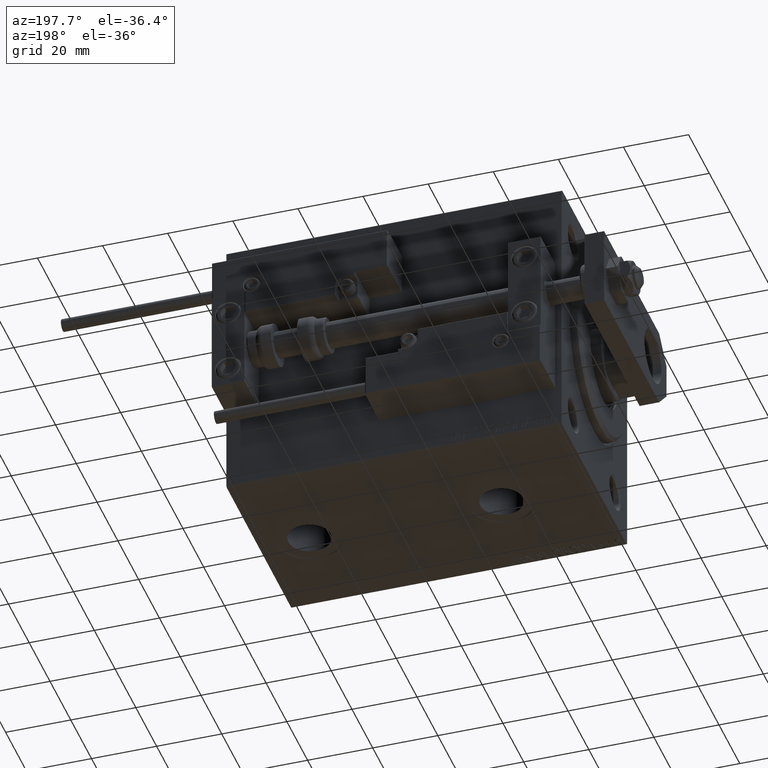
[diagram: clean part render]
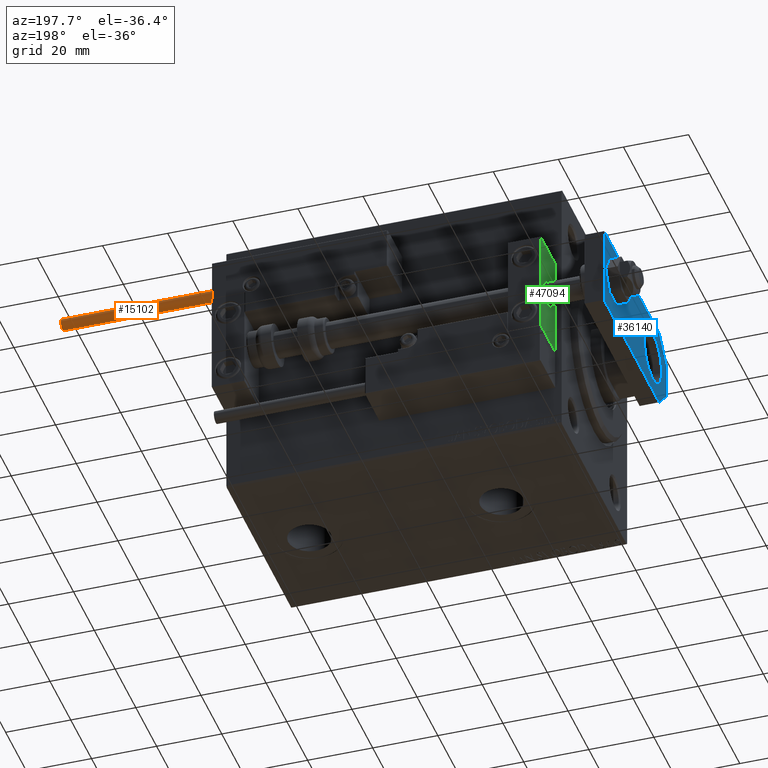
[diagram: same view with three faces highlighted in distinct colors, each labeled with its STEP entity id]
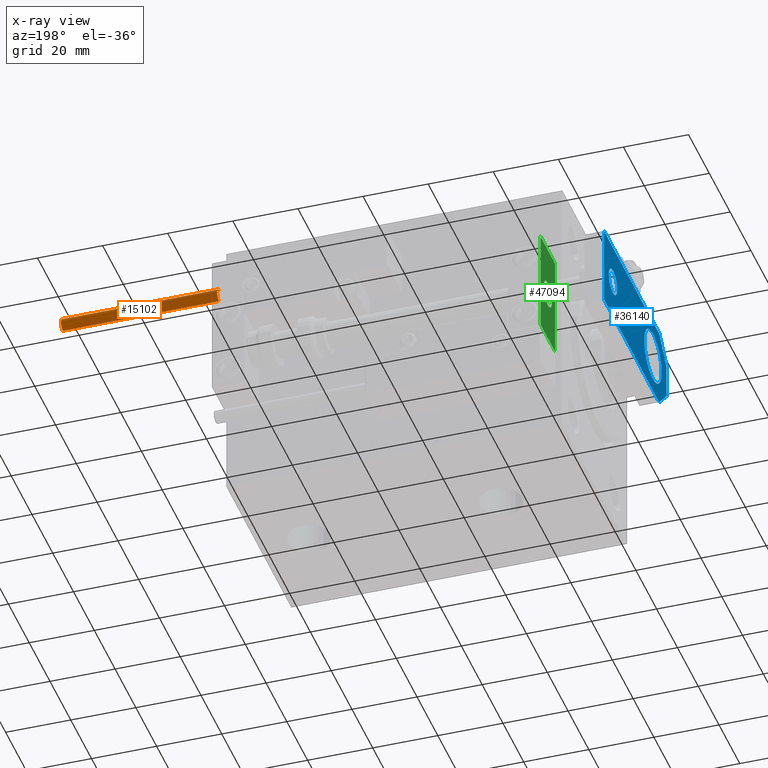
[diagram: x-ray of the same camera — body ghosted, the three highlighted faces saturated]
A machine part, auxiliary view with three faces highlighted in distinct colors.
The next image is the same camera in x-ray (body ghosted, the three faces saturated) — at least one of them is partly hidden behind the body in this view.
Their STEP definitions:

[orange] entity #15102 — the highlighted cylindrical surface (edge-blend (fillet) strip) has radius 1.9 mm, axis along (-1, -0, -0).
#32 = ORIENTED_EDGE ( 'NONE', *, *, #10376, .F. ) ;
#482 = DIRECTION ( 'NONE',  ( 1.000000000000000000, 0.000000000000000000, 0.000000000000000000 ) ) ;
#1290 = VECTOR ( 'NONE', #27601, 1000.000000000000000 ) ;
#2026 = AXIS2_PLACEMENT_3D ( 'NONE', #36532, #12356, #44274 ) ;
#2965 = CARTESIAN_POINT ( 'NONE',  ( -1.899999999999999467, 0.000000000000000000, 0.000000000000000000 ) ) ;
#3309 = EDGE_CURVE ( 'NONE', #45047, #3544, #24915, .T. ) ;
#3544 = VERTEX_POINT ( 'NONE', #28497 ) ;
#5155 = DIRECTION ( 'NONE',  ( -0.000000000000000000, -0.000000000000000000, -1.000000000000000000 ) ) ;
#5808 = EDGE_CURVE ( 'NONE', #45047, #7470, #15118, .T. ) ;
#6351 = ORIENTED_EDGE ( 'NONE', *, *, #35622, .T. ) ;
#7470 = VERTEX_POINT ( 'NONE', #46035 ) ;
#8840 = ORIENTED_EDGE ( 'NONE', *, *, #3309, .F. ) ;
#10376 = EDGE_CURVE ( 'NONE', #3544, #25398, #13018, .T. ) ;
#11137 = CARTESIAN_POINT ( 'NONE',  ( 1.899999999999999467, 2.326828918379970872E-16, 48.00000000000000000 ) ) ;
#12356 = DIRECTION ( 'NONE',  ( 0.000000000000000000, 0.000000000000000000, 1.000000000000000000 ) ) ;
#13018 = LINE ( 'NONE', #41715, #44731 ) ;
#13104 = CYLINDRICAL_SURFACE ( 'NONE', #20164, 1.899999999999999467 ) ;
#15028 = AXIS2_PLACEMENT_3D ( 'NONE', #36859, #49388, #482 ) ;
#15102 = ADVANCED_FACE ( 'NONE', ( #25336 ), #13104, .T. ) ;
#15118 = LINE ( 'NONE', #11137, #1290 ) ;
#20164 = AXIS2_PLACEMENT_3D ( 'NONE', #41545, #5155, #37532 ) ;
#24915 = CIRCLE ( 'NONE', #2026, 1.899999999999999467 ) ;
#25336 = FACE_OUTER_BOUND ( 'NONE', #45450, .T. ) ;
#25398 = VERTEX_POINT ( 'NONE', #2965 ) ;
#27601 = DIRECTION ( 'NONE',  ( -0.000000000000000000, -0.000000000000000000, -1.000000000000000000 ) ) ;
#28497 = CARTESIAN_POINT ( 'NONE',  ( -1.899999999999999467, 0.000000000000000000, 48.00000000000000000 ) ) ;
#30323 = CIRCLE ( 'NONE', #15028, 1.899999999999999467 ) ;
#35622 = EDGE_CURVE ( 'NONE', #7470, #25398, #30323, .T. ) ;
#36532 = CARTESIAN_POINT ( 'NONE',  ( 0.000000000000000000, 0.000000000000000000, 48.00000000000000000 ) ) ;
#36626 = CARTESIAN_POINT ( 'NONE',  ( 1.899999999999999467, 2.326828918379970872E-16, 48.00000000000000000 ) ) ;
#36859 = CARTESIAN_POINT ( 'NONE',  ( 0.000000000000000000, 0.000000000000000000, 0.000000000000000000 ) ) ;
#37532 = DIRECTION ( 'NONE',  ( -1.000000000000000000, 0.000000000000000000, 0.000000000000000000 ) ) ;
#37718 = DIRECTION ( 'NONE',  ( -0.000000000000000000, -0.000000000000000000, -1.000000000000000000 ) ) ;
#41545 = CARTESIAN_POINT ( 'NONE',  ( 0.000000000000000000, 0.000000000000000000, 48.00000000000000000 ) ) ;
#41715 = CARTESIAN_POINT ( 'NONE',  ( -1.899999999999999467, 0.000000000000000000, 48.00000000000000000 ) ) ;
#42842 = ORIENTED_EDGE ( 'NONE', *, *, #5808, .T. ) ;
#44274 = DIRECTION ( 'NONE',  ( 1.000000000000000000, 0.000000000000000000, 0.000000000000000000 ) ) ;
#44731 = VECTOR ( 'NONE', #37718, 1000.000000000000000 ) ;
#45047 = VERTEX_POINT ( 'NONE', #36626 ) ;
#45450 = EDGE_LOOP ( 'NONE', ( #8840, #42842, #6351, #32 ) ) ;
#46035 = CARTESIAN_POINT ( 'NONE',  ( 1.899999999999999467, 2.326828918379970872E-16, 0.000000000000000000 ) ) ;
#49388 = DIRECTION ( 'NONE',  ( 0.000000000000000000, 0.000000000000000000, 1.000000000000000000 ) ) ;

[blue] entity #36140 — the highlighted planar face has unit normal (-1, -0, 0).
#880 = ORIENTED_EDGE ( 'NONE', *, *, #25248, .F. ) ;
#1095 = EDGE_CURVE ( 'NONE', #15966, #31177, #22818, .T. ) ;
#1564 = CARTESIAN_POINT ( 'NONE',  ( -2.750000000000013767, -2.750000000000005773, 6.000000000000000000 ) ) ;
#5706 = ORIENTED_EDGE ( 'NONE', *, *, #18230, .T. ) ;
#6608 = LINE ( 'NONE', #1564, #13055 ) ;
#7297 = FACE_BOUND ( 'NONE', #12033, .T. ) ;
#7887 = ORIENTED_EDGE ( 'NONE', *, *, #12121, .F. ) ;
#8710 = VERTEX_POINT ( 'NONE', #13481 ) ;
#8877 = CARTESIAN_POINT ( 'NONE',  ( -12.50000000000000355, 7.000000000000013323, 6.000000000000000000 ) ) ;
#9113 = VECTOR ( 'NONE', #32200, 1000.000000000000000 ) ;
#9984 = AXIS2_PLACEMENT_3D ( 'NONE', #33754, #46275, #26337 ) ;
#10265 = DIRECTION ( 'NONE',  ( 1.000000000000000000, 0.000000000000000000, 0.000000000000000000 ) ) ;
#10657 = ORIENTED_EDGE ( 'NONE', *, *, #20964, .F. ) ;
#10702 = EDGE_LOOP ( 'NONE', ( #17989, #880 ) ) ;
#10934 = CARTESIAN_POINT ( 'NONE',  ( -5.500000000000010658, 4.814824860968089633E-32, 6.000000000000000000 ) ) ;
#12007 = CARTESIAN_POINT ( 'NONE',  ( 12.50000000000000355, 60.00000000000000000, 6.000000000000000000 ) ) ;
#12033 = EDGE_LOOP ( 'NONE', ( #10657, #7887 ) ) ;
#12121 = EDGE_CURVE ( 'NONE', #50671, #14785, #46542, .T. ) ;
#12139 = CARTESIAN_POINT ( 'NONE',  ( 12.50000000000000355, 4.814824860968089633E-32, 6.000000000000000000 ) ) ;
#12272 = DIRECTION ( 'NONE',  ( 1.000000000000000000, 0.000000000000000000, 0.000000000000000000 ) ) ;
#13055 = VECTOR ( 'NONE', #17768, 1000.000000000000000 ) ;
#13075 = CARTESIAN_POINT ( 'NONE',  ( -12.50000000000000355, 4.814824860968089633E-32, 6.000000000000000000 ) ) ;
#13166 = ORIENTED_EDGE ( 'NONE', *, *, #1095, .T. ) ;
#13481 = CARTESIAN_POINT ( 'NONE',  ( -8.250000000000000000, 12.99999999999999822, 6.000000000000000000 ) ) ;
#14054 = EDGE_CURVE ( 'NONE', #8710, #21967, #44764, .T. ) ;
#14116 = VECTOR ( 'NONE', #43925, 1000.000000000000000 ) ;
#14239 = DIRECTION ( 'NONE',  ( 0.000000000000000000, 0.000000000000000000, 1.000000000000000000 ) ) ;
#14785 = VERTEX_POINT ( 'NONE', #26464 ) ;
#15449 = CIRCLE ( 'NONE', #28188, 4.000000000000000888 ) ;
#15966 = VERTEX_POINT ( 'NONE', #21565 ) ;
#17052 = VERTEX_POINT ( 'NONE', #10934 ) ;
#17768 = DIRECTION ( 'NONE',  ( 0.7071067811865465735, -0.7071067811865485719, 0.000000000000000000 ) ) ;
#17989 = ORIENTED_EDGE ( 'NONE', *, *, #14054, .F. ) ;
#18229 = CARTESIAN_POINT ( 'NONE',  ( -1.432611055310774642E-16, 51.50000000000000000, 6.000000000000000000 ) ) ;
#18230 = EDGE_CURVE ( 'NONE', #17052, #15966, #24777, .T. ) ;
#18822 = CARTESIAN_POINT ( 'NONE',  ( 2.749999999999980016, -2.749999999999988010, 6.000000000000000000 ) ) ;
#19453 = ORIENTED_EDGE ( 'NONE', *, *, #48932, .T. ) ;
#19484 = CARTESIAN_POINT ( 'NONE',  ( -9.629649721936179265E-32, 12.99999999999999822, 6.000000000000000000 ) ) ;
#19730 = CIRCLE ( 'NONE', #36708, 8.250000000000000000 ) ;
#19761 = PLANE ( 'NONE',  #27771 ) ;
#20964 = EDGE_CURVE ( 'NONE', #14785, #50671, #15449, .T. ) ;
#21343 = CARTESIAN_POINT ( 'NONE',  ( -1.432611055310774642E-16, 51.50000000000000000, 6.000000000000000000 ) ) ;
#21355 = CARTESIAN_POINT ( 'NONE',  ( -12.49999999999999822, 60.00000000000000000, 6.000000000000000000 ) ) ;
#21474 = VECTOR ( 'NONE', #27067, 999.9999999999998863 ) ;
#21565 = CARTESIAN_POINT ( 'NONE',  ( 5.499999999999976907, 4.814824860968089633E-32, 6.000000000000000000 ) ) ;
#21773 = AXIS2_PLACEMENT_3D ( 'NONE', #21343, #41000, #25067 ) ;
#21967 = VERTEX_POINT ( 'NONE', #35894 ) ;
#22818 = LINE ( 'NONE', #18822, #21474 ) ;
#24777 = LINE ( 'NONE', #13075, #37260 ) ;
#25067 = DIRECTION ( 'NONE',  ( 1.000000000000000000, 0.000000000000000000, 0.000000000000000000 ) ) ;
#25248 = EDGE_CURVE ( 'NONE', #21967, #8710, #19730, .T. ) ;
#26337 = DIRECTION ( 'NONE',  ( 1.000000000000000000, 0.000000000000000000, 0.000000000000000000 ) ) ;
#26464 = CARTESIAN_POINT ( 'NONE',  ( -4.000000000000000888, 51.50000000000000000, 6.000000000000000000 ) ) ;
#26716 = FACE_OUTER_BOUND ( 'NONE', #41389, .T. ) ;
#27067 = DIRECTION ( 'NONE',  ( 0.7071067811865486830, 0.7071067811865464625, -0.000000000000000000 ) ) ;
#27689 = LINE ( 'NONE', #47903, #14116 ) ;
#27771 = AXIS2_PLACEMENT_3D ( 'NONE', #42937, #35962, #52197 ) ;
#28188 = AXIS2_PLACEMENT_3D ( 'NONE', #18229, #14239, #10265 ) ;
#28346 = DIRECTION ( 'NONE',  ( 0.000000000000000000, 1.000000000000000000, 0.000000000000000000 ) ) ;
#31177 = VERTEX_POINT ( 'NONE', #37628 ) ;
#31238 = VERTEX_POINT ( 'NONE', #37899 ) ;
#32200 = DIRECTION ( 'NONE',  ( -1.000000000000000000, 0.000000000000000000, 0.000000000000000000 ) ) ;
#33754 = CARTESIAN_POINT ( 'NONE',  ( -9.629649721936179265E-32, 12.99999999999999822, 6.000000000000000000 ) ) ;
#35894 = CARTESIAN_POINT ( 'NONE',  ( 8.250000000000000000, 13.00000000000000000, 6.000000000000000000 ) ) ;
#35962 = DIRECTION ( 'NONE',  ( -0.000000000000000000, 0.000000000000000000, 1.000000000000000000 ) ) ;
#36140 = ADVANCED_FACE ( 'NONE', ( #7297, #26716, #39951 ), #19761, .T. ) ;
#36708 = AXIS2_PLACEMENT_3D ( 'NONE', #19484, #48691, #12272 ) ;
#36961 = EDGE_CURVE ( 'NONE', #44475, #39457, #27689, .T. ) ;
#37260 = VECTOR ( 'NONE', #41248, 1000.000000000000000 ) ;
#37628 = CARTESIAN_POINT ( 'NONE',  ( 12.50000000000000355, 7.000000000000006217, 6.000000000000000000 ) ) ;
#37899 = CARTESIAN_POINT ( 'NONE',  ( 12.50000000000000355, 60.00000000000000000, 6.000000000000000000 ) ) ;
#38145 = CARTESIAN_POINT ( 'NONE',  ( 4.000000000000000888, 51.50000000000000000, 6.000000000000000000 ) ) ;
#39457 = VERTEX_POINT ( 'NONE', #8877 ) ;
#39659 = EDGE_CURVE ( 'NONE', #31238, #44475, #40162, .T. ) ;
#39755 = ORIENTED_EDGE ( 'NONE', *, *, #39659, .T. ) ;
#39951 = FACE_BOUND ( 'NONE', #10702, .T. ) ;
#40162 = LINE ( 'NONE', #12007, #9113 ) ;
#40876 = ORIENTED_EDGE ( 'NONE', *, *, #43534, .T. ) ;
#41000 = DIRECTION ( 'NONE',  ( 0.000000000000000000, 0.000000000000000000, 1.000000000000000000 ) ) ;
#41248 = DIRECTION ( 'NONE',  ( 1.000000000000000000, 0.000000000000000000, 0.000000000000000000 ) ) ;
#41389 = EDGE_LOOP ( 'NONE', ( #50678, #19453, #5706, #13166, #40876, #39755 ) ) ;
#42937 = CARTESIAN_POINT ( 'NONE',  ( 0.000000000000000000, 0.000000000000000000, 6.000000000000000000 ) ) ;
#43534 = EDGE_CURVE ( 'NONE', #31177, #31238, #51790, .T. ) ;
#43925 = DIRECTION ( 'NONE',  ( -8.673617379884035472E-17, -1.000000000000000000, 0.000000000000000000 ) ) ;
#44475 = VERTEX_POINT ( 'NONE', #21355 ) ;
#44764 = CIRCLE ( 'NONE', #9984, 8.250000000000000000 ) ;
#46275 = DIRECTION ( 'NONE',  ( 0.000000000000000000, 0.000000000000000000, 1.000000000000000000 ) ) ;
#46542 = CIRCLE ( 'NONE', #21773, 4.000000000000000888 ) ;
#47903 = CARTESIAN_POINT ( 'NONE',  ( -12.49999999999999822, 60.00000000000000000, 6.000000000000000000 ) ) ;
#48691 = DIRECTION ( 'NONE',  ( 0.000000000000000000, 0.000000000000000000, 1.000000000000000000 ) ) ;
#48932 = EDGE_CURVE ( 'NONE', #39457, #17052, #6608, .T. ) ;
#50671 = VERTEX_POINT ( 'NONE', #38145 ) ;
#50678 = ORIENTED_EDGE ( 'NONE', *, *, #36961, .T. ) ;
#51790 = LINE ( 'NONE', #12139, #52550 ) ;
#52197 = DIRECTION ( 'NONE',  ( 1.000000000000000000, 0.000000000000000000, 0.000000000000000000 ) ) ;
#52550 = VECTOR ( 'NONE', #28346, 1000.000000000000000 ) ;

[green] entity #47094 — the highlighted planar face has unit normal (1, 0, 0).
#745 = CARTESIAN_POINT ( 'NONE',  ( 10.00000000000000000, 7.000000000000000000, 15.99999999999999289 ) ) ;
#850 = CARTESIAN_POINT ( 'NONE',  ( 10.00000000000000000, 0.000000000000000000, 4.000000000000000000 ) ) ;
#1011 = AXIS2_PLACEMENT_3D ( 'NONE', #43444, #29709, #37926 ) ;
#1261 = LINE ( 'NONE', #745, #30392 ) ;
#1808 = EDGE_CURVE ( 'NONE', #49786, #16062, #17246, .T. ) ;
#4384 = VERTEX_POINT ( 'NONE', #8035 ) ;
#6239 = AXIS2_PLACEMENT_3D ( 'NONE', #40642, #12996, #24961 ) ;
#7340 = DIRECTION ( 'NONE',  ( -1.000000000000000000, 0.000000000000000000, 0.000000000000000000 ) ) ;
#8035 = CARTESIAN_POINT ( 'NONE',  ( 10.00000000000000000, 7.000000000000000000, -16.00000000000000711 ) ) ;
#8443 = VECTOR ( 'NONE', #50790, 1000.000000000000000 ) ;
#9817 = LINE ( 'NONE', #26030, #45253 ) ;
#11814 = VECTOR ( 'NONE', #46745, 1000.000000000000000 ) ;
#12085 = EDGE_LOOP ( 'NONE', ( #17053, #26254, #16746, #41508 ) ) ;
#12996 = DIRECTION ( 'NONE',  ( -1.000000000000000000, 0.000000000000000000, 0.000000000000000000 ) ) ;
#13498 = FACE_OUTER_BOUND ( 'NONE', #12085, .T. ) ;
#13626 = CARTESIAN_POINT ( 'NONE',  ( 10.00000000000000000, -7.000000000000000000, -16.00000000000000711 ) ) ;
#15333 = CARTESIAN_POINT ( 'NONE',  ( 10.00000000000000000, -7.000000000000000000, 15.99999999999999289 ) ) ;
#16062 = VERTEX_POINT ( 'NONE', #850 ) ;
#16746 = ORIENTED_EDGE ( 'NONE', *, *, #41298, .F. ) ;
#17053 = ORIENTED_EDGE ( 'NONE', *, *, #18880, .T. ) ;
#17246 = CIRCLE ( 'NONE', #6239, 4.000000000000000000 ) ;
#17879 = EDGE_CURVE ( 'NONE', #16062, #49786, #43224, .T. ) ;
#18400 = EDGE_CURVE ( 'NONE', #4384, #47443, #25528, .T. ) ;
#18880 = EDGE_CURVE ( 'NONE', #34287, #47443, #42734, .T. ) ;
#20925 = DIRECTION ( 'NONE',  ( 0.000000000000000000, 0.000000000000000000, -1.000000000000000000 ) ) ;
#21470 = PLANE ( 'NONE',  #1011 ) ;
#23283 = DIRECTION ( 'NONE',  ( 0.000000000000000000, 0.000000000000000000, 1.000000000000000000 ) ) ;
#24168 = CARTESIAN_POINT ( 'NONE',  ( 10.00000000000000000, 7.000000000000000000, 15.99999999999999289 ) ) ;
#24961 = DIRECTION ( 'NONE',  ( 0.000000000000000000, 0.000000000000000000, 1.000000000000000000 ) ) ;
#25528 = LINE ( 'NONE', #42273, #8443 ) ;
#25681 = EDGE_CURVE ( 'NONE', #43214, #34287, #9817, .T. ) ;
#26030 = CARTESIAN_POINT ( 'NONE',  ( 10.00000000000000000, 7.000000000000000000, 15.99999999999999289 ) ) ;
#26254 = ORIENTED_EDGE ( 'NONE', *, *, #18400, .F. ) ;
#26554 = ORIENTED_EDGE ( 'NONE', *, *, #17879, .T. ) ;
#28775 = AXIS2_PLACEMENT_3D ( 'NONE', #36005, #7340, #23283 ) ;
#29709 = DIRECTION ( 'NONE',  ( -1.000000000000000000, 0.000000000000000000, -0.000000000000000000 ) ) ;
#30392 = VECTOR ( 'NONE', #20925, 1000.000000000000000 ) ;
#34287 = VERTEX_POINT ( 'NONE', #36712 ) ;
#36005 = CARTESIAN_POINT ( 'NONE',  ( 10.00000000000000000, 0.000000000000000000, 0.000000000000000000 ) ) ;
#36712 = CARTESIAN_POINT ( 'NONE',  ( 10.00000000000000000, -7.000000000000000000, 15.99999999999999289 ) ) ;
#37926 = DIRECTION ( 'NONE',  ( -0.000000000000000000, 0.000000000000000000, 1.000000000000000000 ) ) ;
#39943 = CARTESIAN_POINT ( 'NONE',  ( 10.00000000000000000, 4.898587196589412829E-16, -4.000000000000000000 ) ) ;
#40642 = CARTESIAN_POINT ( 'NONE',  ( 10.00000000000000000, 0.000000000000000000, 0.000000000000000000 ) ) ;
#41298 = EDGE_CURVE ( 'NONE', #43214, #4384, #1261, .T. ) ;
#41508 = ORIENTED_EDGE ( 'NONE', *, *, #25681, .T. ) ;
#42243 = DIRECTION ( 'NONE',  ( 0.000000000000000000, -1.000000000000000000, 0.000000000000000000 ) ) ;
#42273 = CARTESIAN_POINT ( 'NONE',  ( 10.00000000000000000, 7.000000000000000000, -16.00000000000000711 ) ) ;
#42734 = LINE ( 'NONE', #15333, #11814 ) ;
#43214 = VERTEX_POINT ( 'NONE', #24168 ) ;
#43224 = CIRCLE ( 'NONE', #28775, 4.000000000000000000 ) ;
#43444 = CARTESIAN_POINT ( 'NONE',  ( 10.00000000000000000, 0.000000000000000000, 0.000000000000000000 ) ) ;
#45253 = VECTOR ( 'NONE', #42243, 1000.000000000000000 ) ;
#46745 = DIRECTION ( 'NONE',  ( 0.000000000000000000, 0.000000000000000000, -1.000000000000000000 ) ) ;
#47094 = ADVANCED_FACE ( 'NONE', ( #49923, #13498 ), #21470, .F. ) ;
#47443 = VERTEX_POINT ( 'NONE', #13626 ) ;
#48652 = ORIENTED_EDGE ( 'NONE', *, *, #1808, .T. ) ;
#49786 = VERTEX_POINT ( 'NONE', #39943 ) ;
#49923 = FACE_BOUND ( 'NONE', #52204, .T. ) ;
#50790 = DIRECTION ( 'NONE',  ( 0.000000000000000000, -1.000000000000000000, 0.000000000000000000 ) ) ;
#52204 = EDGE_LOOP ( 'NONE', ( #26554, #48652 ) ) ;